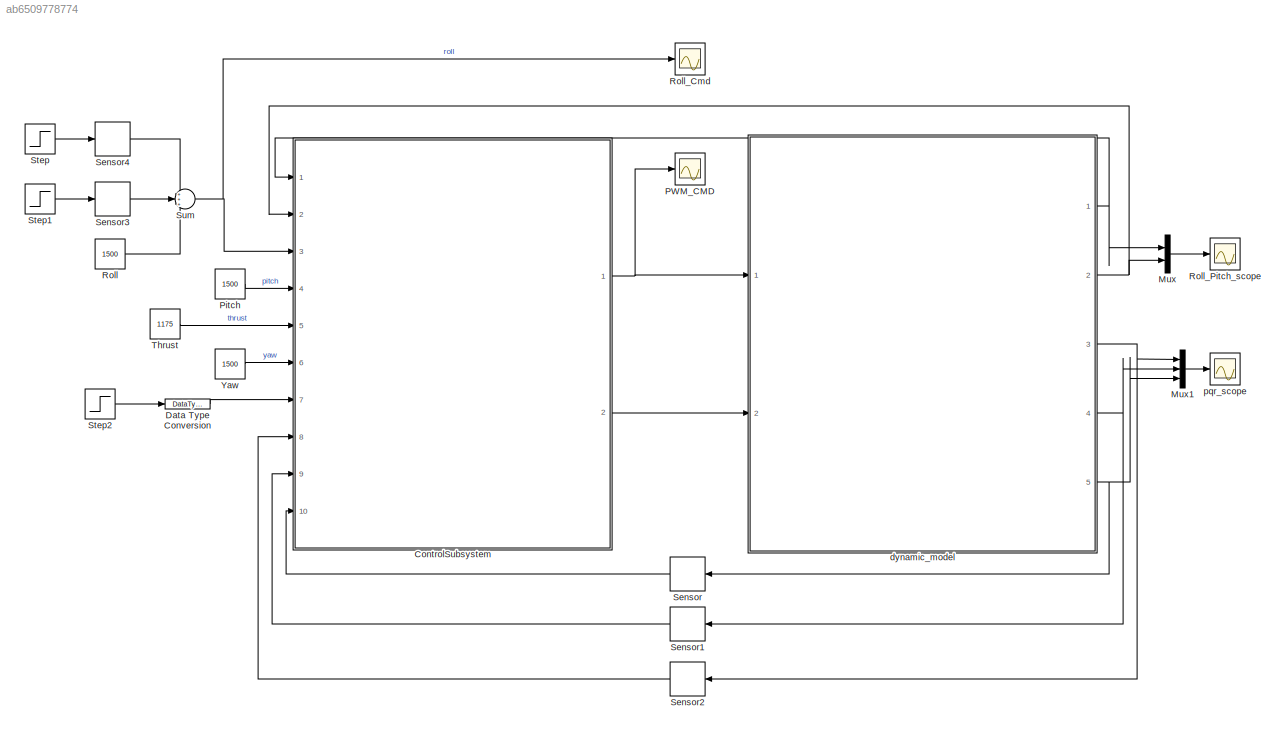
MODEL slx_ab6509778774
KIND model
CONFIG AbsTol = auto
CONFIG EnableMultiTasking = on
CONFIG FixedStep = auto
CONFIG MaxStep = auto
CONFIG MinStep = auto
CONFIG RelTol = 1e-3
CONFIG SampleTimeConstraint = Unconstrained
CONFIG Solver = ode3
CONFIG SolverName = ode3
CONFIG StartTime = 0.0
CONFIG StopTime = 20
BLOCK [ModelReference] ControlSubsystem
  ModelNameDialog = px4demo_attitude_control
  ModelReferenceVersion = 1.109
  Ports = [10, 2]
  Variant = off
BLOCK [DataTypeConversion] Data Type Conversion
  OutDataTypeStr = uint16
  RndMeth = Floor
  SaturateOnIntegerOverflow = off
BLOCK [Mux] Mux
  DisplayOption = bar
  Inputs = 2
  Ports = [2, 1]
BLOCK [Mux] Mux1
  DisplayOption = bar
  Inputs = 3
  Ports = [3, 1]
BLOCK [Scope] PWM_CMD
  NumInputPorts = 1
  Ports = [1]
  ScopeSpecificationString = Simulink.scopes.TimeScopeBlockCfg('CurrentConfiguration', extmgr.ConfigurationSet(extmgr.Configuration('Core','General UI',true),extmgr.Configuration('Core','Source UI',true),extmgr.Configuration('Sources','WiredSimulink',true,'DataLoggingVariableName','ScopeData7','DataLoggingSaveFormat','Array','DataLoggingDecimation','1','DataLoggingDecimateData',true),extmgr.Configuration('Visuals','Time Domai...<+1685ch>
BLOCK [Constant] Pitch
  OutDataTypeStr = uint16
  Value = 1500
BLOCK [Constant] Roll
  Value = 1500
BLOCK [Scope] Roll_Cmd
  NumInputPorts = 1
  Ports = [1]
  ScopeSpecificationString = Simulink.scopes.TimeScopeBlockCfg('CurrentConfiguration', extmgr.ConfigurationSet(extmgr.Configuration('Core','General UI',true),extmgr.Configuration('Core','Source UI',true),extmgr.Configuration('Sources','WiredSimulink',true,'DataLoggingVariableName','ScopeData10','DataLoggingLimitDataPoints',true,'DataLoggingSaveFormat','Array','DataLoggingDecimation','1','DataLoggingDecimateData',true),extmgr....<+1717ch>
BLOCK [Scope] Roll_Pitch_scope
  NumInputPorts = 1
  Ports = [1]
  ScopeSpecificationString = Simulink.scopes.TimeScopeBlockCfg('CurrentConfiguration', extmgr.ConfigurationSet(extmgr.Configuration('Core','General UI',true),extmgr.Configuration('Core','Source UI',true),extmgr.Configuration('Sources','WiredSimulink',true,'DataLoggingVariableName','ScopeData6','DataLoggingLimitDataPoints',true,'DataLoggingSaveFormat','Array','DataLoggingDecimation','1','DataLoggingDecimateData',true),extmgr.C...<+1723ch>
BLOCK [Delay] Sensor
  DelayLength = 1
  InputPortMap = u0
  Ports = [1, 1]
BLOCK [Delay] Sensor1
  DelayLength = 1
  InputPortMap = u0
  Ports = [1, 1]
BLOCK [Delay] Sensor2
  DelayLength = 1
  InputPortMap = u0
  Ports = [1, 1]
BLOCK [Delay] Sensor3
  DelayLength = 1
  InputPortMap = u0
  Ports = [1, 1]
BLOCK [Delay] Sensor4
  DelayLength = 1
  InputPortMap = u0
  Ports = [1, 1]
BLOCK [Step] Step
  After = 100
  SampleTime = 0
  Time = 10
BLOCK [Step] Step1
  After = -100
  SampleTime = 0
  Time = 16
BLOCK [Step] Step2
  After = 1501
  Before = 1499
  SampleTime = 1/250
  Time = 5
BLOCK [Sum] Sum
  IconShape = round
  InputSameDT = off
  Inputs = +++
  OutDataTypeStr = uint16
  Ports = [3, 1]
  SaturateOnIntegerOverflow = off
BLOCK [Constant] Thrust
  OutDataTypeStr = uint16
  Value = 1175
BLOCK [Constant] Yaw
  OutDataTypeStr = uint16
  Value = 1500
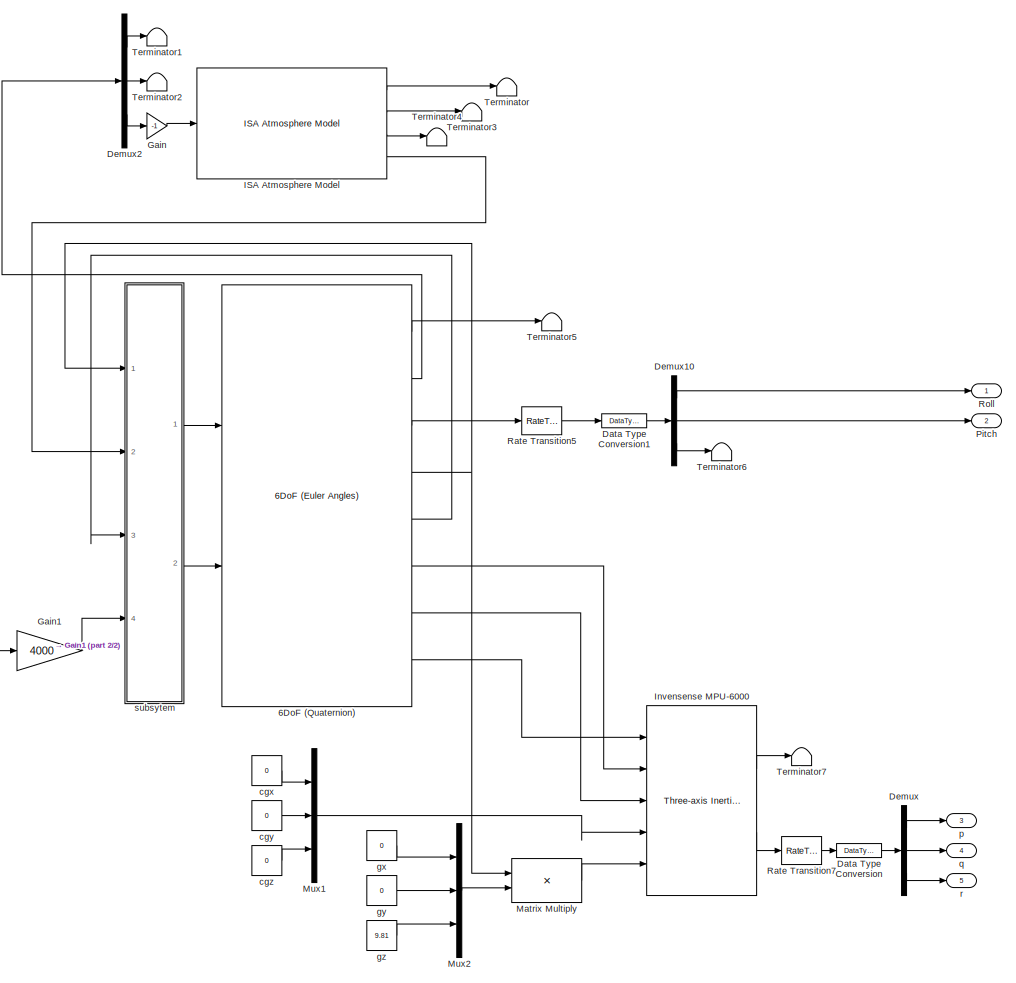
[diagram: dynamic_model - part 1/2, center side, full height]
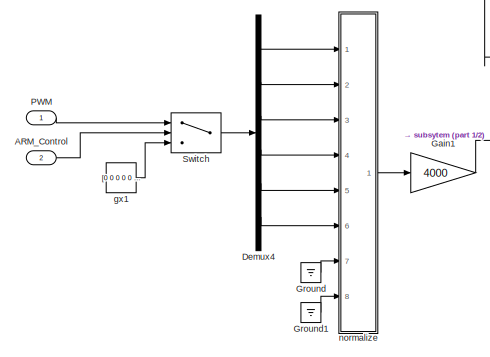
[diagram: dynamic_model - part 2/2, bottom left region]
BLOCK [SubSystem] dynamic_model
  Ports = [2, 5]
  RequestExecContextInheritance = off
  Variant = off
BLOCK [Reference] dynamic_model/6DoF (Quaternion)  REF=aerolibobsolete/6DoF (Euler Angles)
  Ports = [2, 8]
  SourceBlock = aerolibobsolete/6DoF (Euler Angles)
  SourceProductBaseCode = AE
  SourceProductName = Aerospace Blockset
  SourceType = 6DoF EoM (Body Axis)
BLOCK [Inport] dynamic_model/ARM_Control
  IconDisplay = Port number
  Port = 2
BLOCK [DataTypeConversion] dynamic_model/Data Type Conversion
  OutDataTypeStr = single
  RndMeth = Floor
  SaturateOnIntegerOverflow = off
BLOCK [DataTypeConversion] dynamic_model/Data Type Conversion1
  OutDataTypeStr = single
  RndMeth = Floor
  SaturateOnIntegerOverflow = off
BLOCK [Demux] dynamic_model/Demux
  DisplayOption = bar
  Outputs = 3
  Ports = [1, 3]
BLOCK [Demux] dynamic_model/Demux10
  DisplayOption = bar
  Outputs = 3
  Ports = [1, 3]
BLOCK [Demux] dynamic_model/Demux2
  DisplayOption = bar
  Outputs = 3
  Ports = [1, 3]
BLOCK [Demux] dynamic_model/Demux4
  DisplayOption = bar
  Outputs = 6
  Ports = [1, 6]
BLOCK [Gain] dynamic_model/Gain
  Gain = -1
  OutDataTypeStr = Inherit: Inherit via internal rule
  ParamDataTypeStr = Inherit: Inherit via internal rule
  SaturateOnIntegerOverflow = off
BLOCK [Gain] dynamic_model/Gain1
  Gain = 4000
  OutDataTypeStr = Inherit: Inherit via internal rule
  ParamDataTypeStr = Inherit: Inherit via internal rule
  SaturateOnIntegerOverflow = off
BLOCK [Ground] dynamic_model/Ground
BLOCK [Ground] dynamic_model/Ground1
BLOCK [Reference] dynamic_model/ISA Atmosphere Model  REF=aerolibatmos2/ISA Atmosphere Model
  Ports = [1, 4]
  SourceBlock = aerolibatmos2/ISA Atmosphere Model
  SourceProductBaseCode = AE
  SourceProductName = Aerospace Blockset
  SourceType = International Standard Atmosphere Model
BLOCK [Reference] dynamic_model/Invensense MPU-6000  REF=aerolibnav/Three-axis Inertial
Measurement Unit
  Ports = [5, 2]
  SourceBlock = aerolibnav/Three-axis Inertial\nMeasurement Unit
  SourceProductBaseCode = AE
  SourceProductName = Aerospace Blockset
  SourceType = Three-axis Inertial Measurement Unit
BLOCK [Product] dynamic_model/Matrix Multiply
  InputSameDT = off
  Multiplication = Matrix(*)
  OutDataTypeStr = Inherit: Inherit via internal rule
  Ports = [2, 1]
  RndMeth = Floor
  SaturateOnIntegerOverflow = off
BLOCK [Mux] dynamic_model/Mux1
  DisplayOption = bar
  Inputs = 3
  Ports = [3, 1]
BLOCK [Mux] dynamic_model/Mux2
  DisplayOption = bar
  Inputs = 3
  Ports = [3, 1]
BLOCK [Inport] dynamic_model/PWM
  IconDisplay = Port number
BLOCK [Outport] dynamic_model/Pitch
  IconDisplay = Port number
  Port = 2
BLOCK [RateTransition] dynamic_model/Rate Transition5
  OutPortSampleTime = 0.004
BLOCK [RateTransition] dynamic_model/Rate Transition7
  OutPortSampleTime = 0.004
BLOCK [Outport] dynamic_model/Roll
  IconDisplay = Port number
BLOCK [Switch] dynamic_model/Switch
  Criteria = u2 > Threshold
  InputSameDT = off
  SaturateOnIntegerOverflow = off
BLOCK [Terminator] dynamic_model/Terminator
BLOCK [Terminator] dynamic_model/Terminator1
BLOCK [Terminator] dynamic_model/Terminator2
BLOCK [Terminator] dynamic_model/Terminator3
BLOCK [Terminator] dynamic_model/Terminator4
BLOCK [Terminator] dynamic_model/Terminator5
BLOCK [Terminator] dynamic_model/Terminator6
BLOCK [Terminator] dynamic_model/Terminator7
BLOCK [Constant] dynamic_model/cgx
  Value = 0
BLOCK [Constant] dynamic_model/cgy
  Value = 0
BLOCK [Constant] dynamic_model/cgz
  Value = 0
BLOCK [Constant] dynamic_model/gx
  Value = 0
BLOCK [Constant] dynamic_model/gx1
  OutDataTypeStr = uint16
  Value = [0 0 0 0 0 0]
BLOCK [Constant] dynamic_model/gy
  Value = 0
BLOCK [Constant] dynamic_model/gz
  Value = 9.81
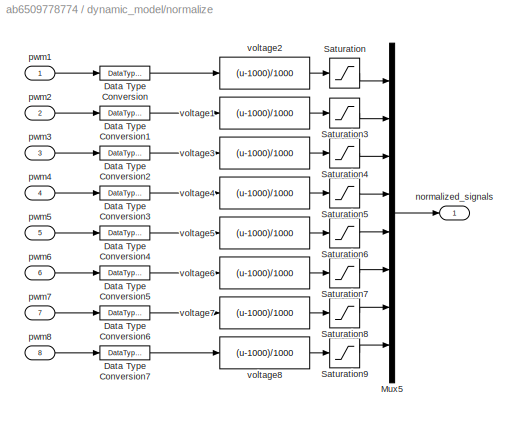
BLOCK [SubSystem] dynamic_model/normalize
  Ports = [8, 1]
  RequestExecContextInheritance = off
  Variant = off
BLOCK [DataTypeConversion] dynamic_model/normalize/Data Type Conversion
  OutDataTypeStr = double
  RndMeth = Floor
  SaturateOnIntegerOverflow = off
BLOCK [DataTypeConversion] dynamic_model/normalize/Data Type Conversion1
  OutDataTypeStr = double
  RndMeth = Floor
  SaturateOnIntegerOverflow = off
BLOCK [DataTypeConversion] dynamic_model/normalize/Data Type Conversion2
  OutDataTypeStr = double
  RndMeth = Floor
  SaturateOnIntegerOverflow = off
BLOCK [DataTypeConversion] dynamic_model/normalize/Data Type Conversion3
  OutDataTypeStr = double
  RndMeth = Floor
  SaturateOnIntegerOverflow = off
BLOCK [DataTypeConversion] dynamic_model/normalize/Data Type Conversion4
  OutDataTypeStr = double
  RndMeth = Floor
  SaturateOnIntegerOverflow = off
BLOCK [DataTypeConversion] dynamic_model/normalize/Data Type Conversion5
  OutDataTypeStr = double
  RndMeth = Floor
  SaturateOnIntegerOverflow = off
BLOCK [DataTypeConversion] dynamic_model/normalize/Data Type Conversion6
  OutDataTypeStr = double
  RndMeth = Floor
  SaturateOnIntegerOverflow = off
BLOCK [DataTypeConversion] dynamic_model/normalize/Data Type Conversion7
  OutDataTypeStr = double
  RndMeth = Floor
  SaturateOnIntegerOverflow = off
BLOCK [Mux] dynamic_model/normalize/Mux5
  DisplayOption = bar
  Inputs = 8
  Ports = [8, 1]
BLOCK [Saturate] dynamic_model/normalize/Saturation
  InputPortMap = u0
  LowerLimit = 0
  Ports = [1, 1]
  UpperLimit = 1
BLOCK [Saturate] dynamic_model/normalize/Saturation3
  InputPortMap = u0
  LowerLimit = 0
  Ports = [1, 1]
  UpperLimit = 1
BLOCK [Saturate] dynamic_model/normalize/Saturation4
  InputPortMap = u0
  LowerLimit = 0
  Ports = [1, 1]
  UpperLimit = 1
BLOCK [Saturate] dynamic_model/normalize/Saturation5
  InputPortMap = u0
  LowerLimit = 0
  Ports = [1, 1]
  UpperLimit = 1
BLOCK [Saturate] dynamic_model/normalize/Saturation6
  InputPortMap = u0
  LowerLimit = 0
  Ports = [1, 1]
  UpperLimit = 1
BLOCK [Saturate] dynamic_model/normalize/Saturation7
  InputPortMap = u0
  LowerLimit = 0
  Ports = [1, 1]
  UpperLimit = 1
BLOCK [Saturate] dynamic_model/normalize/Saturation8
  InputPortMap = u0
  LowerLimit = 0
  Ports = [1, 1]
  UpperLimit = 1
BLOCK [Saturate] dynamic_model/normalize/Saturation9
  InputPortMap = u0
  LowerLimit = 0
  Ports = [1, 1]
  UpperLimit = 1
BLOCK [Outport] dynamic_model/normalize/normalized_signals
  IconDisplay = Port number
BLOCK [Inport] dynamic_model/normalize/pwm1
  IconDisplay = Port number
BLOCK [Inport] dynamic_model/normalize/pwm2
  IconDisplay = Port number
  Port = 2
BLOCK [Inport] dynamic_model/normalize/pwm3
  IconDisplay = Port number
  Port = 3
BLOCK [Inport] dynamic_model/normalize/pwm4
  IconDisplay = Port number
  Port = 4
BLOCK [Inport] dynamic_model/normalize/pwm5
  IconDisplay = Port number
  Port = 5
BLOCK [Inport] dynamic_model/normalize/pwm6
  IconDisplay = Port number
  Port = 6
BLOCK [Inport] dynamic_model/normalize/pwm7
  IconDisplay = Port number
  Port = 7
BLOCK [Inport] dynamic_model/normalize/pwm8
  IconDisplay = Port number
  Port = 8
BLOCK [Fcn] dynamic_model/normalize/voltage1
  Expr = (u-1000)/1000
BLOCK [Fcn] dynamic_model/normalize/voltage2
  Expr = (u-1000)/1000
BLOCK [Fcn] dynamic_model/normalize/voltage3
  Expr = (u-1000)/1000
BLOCK [Fcn] dynamic_model/normalize/voltage4
  Expr = (u-1000)/1000
BLOCK [Fcn] dynamic_model/normalize/voltage5
  Expr = (u-1000)/1000
BLOCK [Fcn] dynamic_model/normalize/voltage6
  Expr = (u-1000)/1000
BLOCK [Fcn] dynamic_model/normalize/voltage7
  Expr = (u-1000)/1000
BLOCK [Fcn] dynamic_model/normalize/voltage8
  Expr = (u-1000)/1000
BLOCK [Outport] dynamic_model/p
  IconDisplay = Port number
  Port = 3
BLOCK [Outport] dynamic_model/q
  IconDisplay = Port number
  Port = 4
BLOCK [Outport] dynamic_model/r
  IconDisplay = Port number
  Port = 5
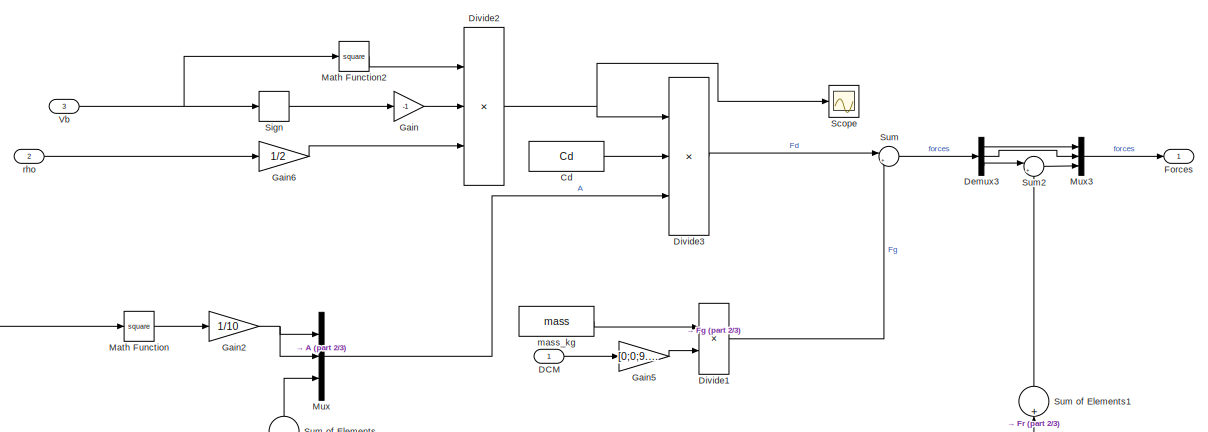
[diagram: dynamic_model/subsytem - part 1/3, top right region]
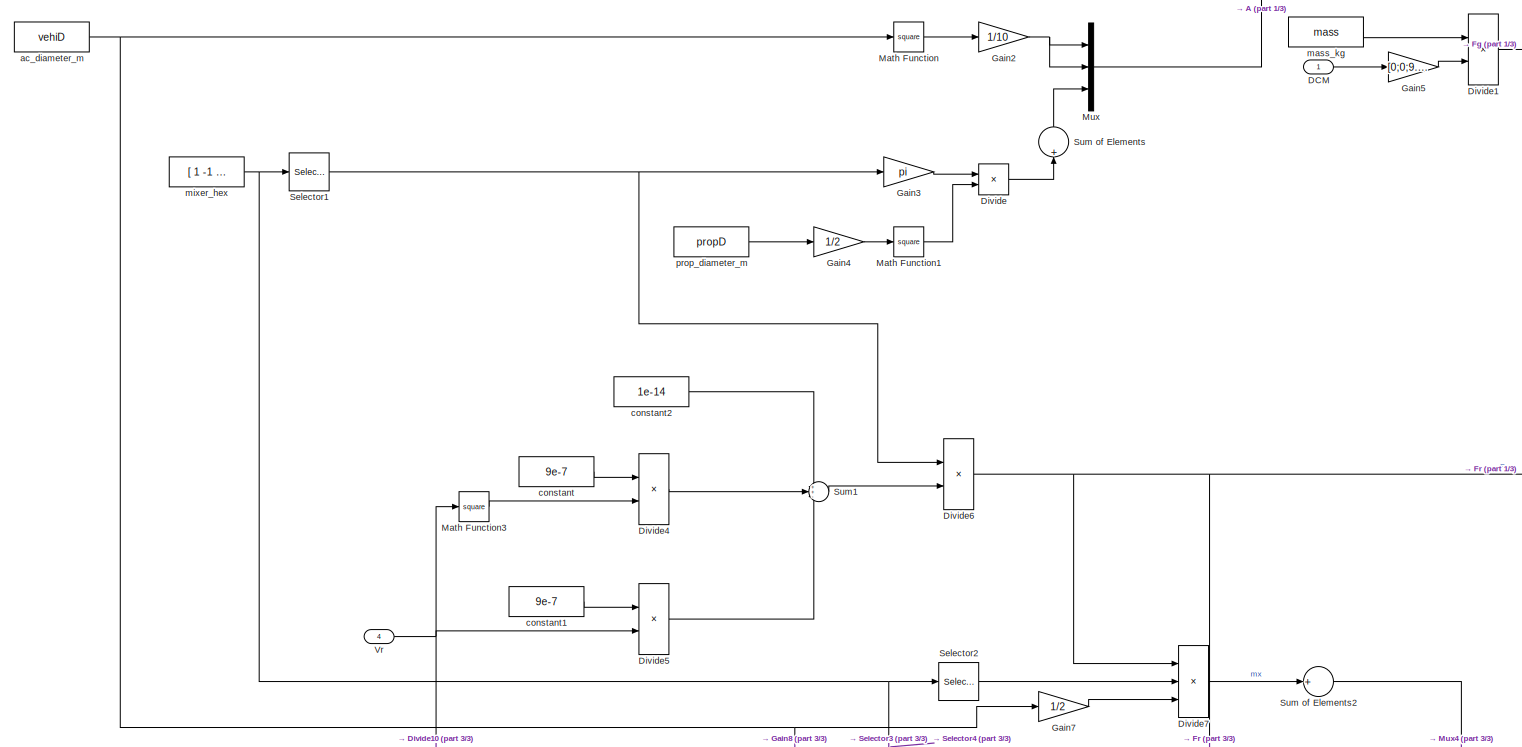
[diagram: dynamic_model/subsytem - part 2/3, full width, middle band]
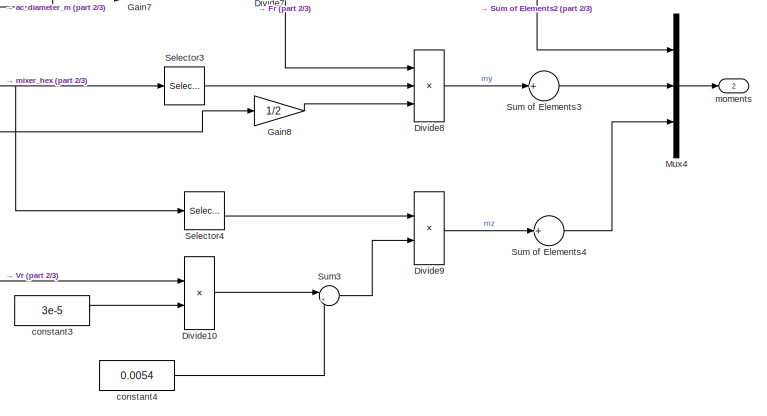
[diagram: dynamic_model/subsytem - part 3/3, bottom center region]
BLOCK [SubSystem] dynamic_model/subsytem
  Ports = [4, 2]
  RequestExecContextInheritance = off
  Variant = off
BLOCK [Constant] dynamic_model/subsytem/Cd
  Value = Cd
BLOCK [Inport] dynamic_model/subsytem/DCM
  IconDisplay = Port number
BLOCK [Demux] dynamic_model/subsytem/Demux3
  DisplayOption = bar
  Outputs = 3
  Ports = [1, 3]
BLOCK [Product] dynamic_model/subsytem/Divide
  InputSameDT = off
  Inputs = **
  OutDataTypeStr = Inherit: Inherit via internal rule
  Ports = [2, 1]
  RndMeth = Floor
  SaturateOnIntegerOverflow = off
BLOCK [Product] dynamic_model/subsytem/Divide1
  InputSameDT = off
  Inputs = **
  OutDataTypeStr = Inherit: Inherit via internal rule
  Ports = [2, 1]
  RndMeth = Floor
  SaturateOnIntegerOverflow = off
BLOCK [Product] dynamic_model/subsytem/Divide10
  InputSameDT = off
  Inputs = **
  OutDataTypeStr = Inherit: Inherit via internal rule
  Ports = [2, 1]
  RndMeth = Floor
  SaturateOnIntegerOverflow = off
BLOCK [Product] dynamic_model/subsytem/Divide2
  InputSameDT = off
  Inputs = ***
  OutDataTypeStr = Inherit: Inherit via internal rule
  Ports = [3, 1]
  RndMeth = Floor
  SaturateOnIntegerOverflow = off
BLOCK [Product] dynamic_model/subsytem/Divide3
  InputSameDT = off
  Inputs = ***
  OutDataTypeStr = Inherit: Inherit via internal rule
  Ports = [3, 1]
  RndMeth = Floor
  SaturateOnIntegerOverflow = off
BLOCK [Product] dynamic_model/subsytem/Divide4
  InputSameDT = off
  Inputs = **
  OutDataTypeStr = Inherit: Inherit via internal rule
  Ports = [2, 1]
  RndMeth = Floor
  SaturateOnIntegerOverflow = off
BLOCK [Product] dynamic_model/subsytem/Divide5
  InputSameDT = off
  Inputs = **
  OutDataTypeStr = Inherit: Inherit via internal rule
  Ports = [2, 1]
  RndMeth = Floor
  SaturateOnIntegerOverflow = off
BLOCK [Product] dynamic_model/subsytem/Divide6
  InputSameDT = off
  Inputs = **
  OutDataTypeStr = Inherit: Inherit via internal rule
  Ports = [2, 1]
  RndMeth = Floor
  SaturateOnIntegerOverflow = off
BLOCK [Product] dynamic_model/subsytem/Divide7
  InputSameDT = off
  Inputs = ***
  OutDataTypeStr = Inherit: Inherit via internal rule
  Ports = [3, 1]
  RndMeth = Floor
  SaturateOnIntegerOverflow = off
BLOCK [Product] dynamic_model/subsytem/Divide8
  InputSameDT = off
  Inputs = ***
  OutDataTypeStr = Inherit: Inherit via internal rule
  Ports = [3, 1]
  RndMeth = Floor
  SaturateOnIntegerOverflow = off
BLOCK [Product] dynamic_model/subsytem/Divide9
  InputSameDT = off
  Inputs = **
  OutDataTypeStr = Inherit: Inherit via internal rule
  Ports = [2, 1]
  RndMeth = Floor
  SaturateOnIntegerOverflow = off
BLOCK [Outport] dynamic_model/subsytem/Forces
  IconDisplay = Port number
BLOCK [Gain] dynamic_model/subsytem/Gain
  Gain = -1
  OutDataTypeStr = Inherit: Inherit via internal rule
  ParamDataTypeStr = Inherit: Inherit via internal rule
  SaturateOnIntegerOverflow = off
BLOCK [Gain] dynamic_model/subsytem/Gain2
  Gain = 1/10
  OutDataTypeStr = Inherit: Inherit via internal rule
  ParamDataTypeStr = Inherit: Inherit via internal rule
  SaturateOnIntegerOverflow = off
BLOCK [Gain] dynamic_model/subsytem/Gain3
  Gain = pi
  OutDataTypeStr = Inherit: Inherit via internal rule
  ParamDataTypeStr = Inherit: Inherit via internal rule
  SaturateOnIntegerOverflow = off
BLOCK [Gain] dynamic_model/subsytem/Gain4
  Gain = 1/2
  OutDataTypeStr = Inherit: Inherit via internal rule
  ParamDataTypeStr = Inherit: Inherit via internal rule
  SaturateOnIntegerOverflow = off
BLOCK [Gain] dynamic_model/subsytem/Gain5
  Gain = [0;0;9.81]
  Multiplication = Matrix(u*K)
  OutDataTypeStr = Inherit: Inherit via internal rule
  ParamDataTypeStr = Inherit: Inherit via internal rule
  SaturateOnIntegerOverflow = off
BLOCK [Gain] dynamic_model/subsytem/Gain6
  Gain = 1/2
  OutDataTypeStr = Inherit: Inherit via internal rule
  ParamDataTypeStr = Inherit: Inherit via internal rule
  SaturateOnIntegerOverflow = off
BLOCK [Gain] dynamic_model/subsytem/Gain7
  Gain = 1/2
  OutDataTypeStr = Inherit: Inherit via internal rule
  ParamDataTypeStr = Inherit: Inherit via internal rule
  SaturateOnIntegerOverflow = off
BLOCK [Gain] dynamic_model/subsytem/Gain8
  Gain = 1/2
  OutDataTypeStr = Inherit: Inherit via internal rule
  ParamDataTypeStr = Inherit: Inherit via internal rule
  SaturateOnIntegerOverflow = off
BLOCK [Math] dynamic_model/subsytem/Math Function
  Operator = square
  Ports = [1, 1]
BLOCK [Math] dynamic_model/subsytem/Math Function1
  Operator = square
  Ports = [1, 1]
BLOCK [Math] dynamic_model/subsytem/Math Function2
  Operator = square
  Ports = [1, 1]
BLOCK [Math] dynamic_model/subsytem/Math Function3
  Operator = square
  Ports = [1, 1]
BLOCK [Mux] dynamic_model/subsytem/Mux
  DisplayOption = bar
  Inputs = 3
  Ports = [3, 1]
BLOCK [Mux] dynamic_model/subsytem/Mux3
  DisplayOption = bar
  Inputs = 3
  Ports = [3, 1]
BLOCK [Mux] dynamic_model/subsytem/Mux4
  DisplayOption = bar
  Inputs = 3
  Ports = [3, 1]
BLOCK [Scope] dynamic_model/subsytem/Scope
  Commented = on
  NumInputPorts = 1
  Ports = [1]
  ScopeSpecificationString = C++SS(StrPVP('Location','[1130, 441, 1497, 705]'),StrPVP('Open','off'),MxPVP('AxesTitles',53,'struct(''axes1'',''%<SignalLabel>'')'),MxPVP('ScopeGraphics',56,'struct(''FigureColor'',''[0.5 0.5 0.5]'',''AxesColor'',''[0 0 0]'',''AxesTickColor'',''[1 1 1]'',''LineColors'',''[1 1 0;1 0 1;0 1 1;1 0 0;0 1 0;0 0 1]'',''LineStyles'',''-|-|-|-|-|-'',''LineWidths'',''[0.5 0.5 0.5 0.5 0.5 0.5]'',''MarkerSty...<+269ch>
BLOCK [Selector] dynamic_model/subsytem/Selector1
  IndexOptions = Index vector (dialog),Index vector (dialog)
  Indices = [1:8],1
  InputPortWidth = [8 4]
  NumberOfDimensions = 2
  OutputSizes = 1,1
  Ports = [1, 1]
BLOCK [Selector] dynamic_model/subsytem/Selector2
  IndexOptions = Index vector (dialog),Index vector (dialog)
  Indices = [1:8],2
  InputPortWidth = [8 4]
  NumberOfDimensions = 2
  OutputSizes = 1,1
  Ports = [1, 1]
BLOCK [Selector] dynamic_model/subsytem/Selector3
  IndexOptions = Index vector (dialog),Index vector (dialog)
  Indices = [1:8],3
  InputPortWidth = [8 4]
  NumberOfDimensions = 2
  OutputSizes = 1,1
  Ports = [1, 1]
BLOCK [Selector] dynamic_model/subsytem/Selector4
  IndexOptions = Index vector (dialog),Index vector (dialog)
  Indices = [1:8],4
  InputPortWidth = [8 4]
  NumberOfDimensions = 2
  OutputSizes = 1,1
  Ports = [1, 1]
BLOCK [Signum] dynamic_model/subsytem/Sign
BLOCK [Sum] dynamic_model/subsytem/Sum
  IconShape = round
  InputSameDT = off
  Inputs = |++
  OutDataTypeStr = Inherit: Inherit via internal rule
  Ports = [2, 1]
  SaturateOnIntegerOverflow = off
BLOCK [Sum] dynamic_model/subsytem/Sum of Elements
  InputSameDT = off
  Inputs = +
  OutDataTypeStr = Inherit: Inherit via internal rule
  Ports = [1, 1]
  SaturateOnIntegerOverflow = off
BLOCK [Sum] dynamic_model/subsytem/Sum of Elements1
  InputSameDT = off
  Inputs = +
  OutDataTypeStr = Inherit: Inherit via internal rule
  Ports = [1, 1]
  SaturateOnIntegerOverflow = off
BLOCK [Sum] dynamic_model/subsytem/Sum of Elements2
  InputSameDT = off
  Inputs = +
  OutDataTypeStr = Inherit: Inherit via internal rule
  Ports = [1, 1]
  SaturateOnIntegerOverflow = off
BLOCK [Sum] dynamic_model/subsytem/Sum of Elements3
  InputSameDT = off
  Inputs = +
  OutDataTypeStr = Inherit: Inherit via internal rule
  Ports = [1, 1]
  SaturateOnIntegerOverflow = off
BLOCK [Sum] dynamic_model/subsytem/Sum of Elements4
  InputSameDT = off
  Inputs = +
  OutDataTypeStr = Inherit: Inherit via internal rule
  Ports = [1, 1]
  SaturateOnIntegerOverflow = off
BLOCK [Sum] dynamic_model/subsytem/Sum1
  IconShape = round
  InputSameDT = off
  Inputs = ++-
  OutDataTypeStr = Inherit: Inherit via internal rule
  Ports = [3, 1]
  SaturateOnIntegerOverflow = off
BLOCK [Sum] dynamic_model/subsytem/Sum2
  IconShape = round
  InputSameDT = off
  Inputs = |+-
  OutDataTypeStr = Inherit: Inherit via internal rule
  Ports = [2, 1]
  SaturateOnIntegerOverflow = off
BLOCK [Sum] dynamic_model/subsytem/Sum3
  IconShape = round
  InputSameDT = off
  Inputs = |+-
  OutDataTypeStr = Inherit: Inherit via internal rule
  Ports = [2, 1]
  SaturateOnIntegerOverflow = off
BLOCK [Inport] dynamic_model/subsytem/Vb
  IconDisplay = Port number
  Port = 3
BLOCK [Inport] dynamic_model/subsytem/Vr
  IconDisplay = Port number
  Port = 4
BLOCK [Constant] dynamic_model/subsytem/ac_diameter_m
  Value = vehiD
BLOCK [Constant] dynamic_model/subsytem/constant
  Value = 9e-7
BLOCK [Constant] dynamic_model/subsytem/constant1
  Value = 9e-7
BLOCK [Constant] dynamic_model/subsytem/constant2
  Value = 1e-14
BLOCK [Constant] dynamic_model/subsytem/constant3
  Value = 3e-5
BLOCK [Constant] dynamic_model/subsytem/constant4
  Value = 0.0054
BLOCK [Constant] dynamic_model/subsytem/mass_kg
  Value = mass
BLOCK [Constant] dynamic_model/subsytem/mixer_hex
  Value = [   1   -1   0  -1   ;\n            1  1   0   1   ;\n            1  1   1  -1   ;\n            1  -1  -1   1   ;\n            1   -1  1  1   ;\n            1   1   -1   -1   ;\n            0   0   0   0   ;\n            0   0   0   0   ];
BLOCK [Outport] dynamic_model/subsytem/moments
  IconDisplay = Port number
  Port = 2
BLOCK [Constant] dynamic_model/subsytem/prop_diameter_m
  Value = propD
BLOCK [Inport] dynamic_model/subsytem/rho
  IconDisplay = Port number
  Port = 2
BLOCK [Scope] pqr_scope
  NumInputPorts = 1
  Ports = [1]
  ScopeSpecificationString = Simulink.scopes.TimeScopeBlockCfg('CurrentConfiguration', extmgr.ConfigurationSet(extmgr.Configuration('Core','General UI',true),extmgr.Configuration('Core','Source UI',true),extmgr.Configuration('Sources','WiredSimulink',true,'DataLoggingLimitDataPoints',true,'DataLoggingSaveFormat','Array','DataLoggingDecimation','1','DataLoggingDecimateData',true),extmgr.Configuration('Visuals','Time Domain',tr...<+1685ch>
NET ControlSubsystem:1 -> PWM_CMD:1, dynamic_model:1
LINE ControlSubsystem:2 -> dynamic_model:2
LINE Data Type Conversion:1 -> ControlSubsystem:7
LINE Mux1:1 -> pqr_scope:1
LINE Mux:1 -> Roll_Pitch_scope:1
LINE Pitch:1 -> ControlSubsystem:4
LINE Roll:1 -> Sum:3
LINE Sensor1:1 -> ControlSubsystem:9
LINE Sensor2:1 -> ControlSubsystem:8
LINE Sensor3:1 -> Sum:2
LINE Sensor4:1 -> Sum:1
LINE Sensor:1 -> ControlSubsystem:10
LINE Step1:1 -> Sensor3:1
LINE Step2:1 -> Data Type Conversion:1
LINE Step:1 -> Sensor4:1
NET Sum:1 -> ControlSubsystem:3, Roll_Cmd:1
LINE Thrust:1 -> ControlSubsystem:5
LINE Yaw:1 -> ControlSubsystem:6
LINE dynamic_model/6DoF (Quaternion):1 -> dynamic_model/Terminator5:1
LINE dynamic_model/6DoF (Quaternion):2 -> dynamic_model/Demux2:1
LINE dynamic_model/6DoF (Quaternion):3 -> dynamic_model/Rate Transition5:1
NET dynamic_model/6DoF (Quaternion):4 -> dynamic_model/Matrix Multiply:1, dynamic_model/subsytem:1
LINE dynamic_model/6DoF (Quaternion):5 -> dynamic_model/subsytem:3
LINE dynamic_model/6DoF (Quaternion):6 -> dynamic_model/Invensense MPU-6000:2
LINE dynamic_model/6DoF (Quaternion):7 -> dynamic_model/Invensense MPU-6000:3
LINE dynamic_model/6DoF (Quaternion):8 -> dynamic_model/Invensense MPU-6000:1
LINE dynamic_model/ARM_Control:1 -> dynamic_model/Switch:2
LINE dynamic_model/Data Type Conversion1:1 -> dynamic_model/Demux10:1
LINE dynamic_model/Data Type Conversion:1 -> dynamic_model/Demux:1
LINE dynamic_model/Demux10:1 -> dynamic_model/Roll:1
LINE dynamic_model/Demux10:2 -> dynamic_model/Pitch:1
LINE dynamic_model/Demux10:3 -> dynamic_model/Terminator6:1
LINE dynamic_model/Demux2:1 -> dynamic_model/Terminator1:1
LINE dynamic_model/Demux2:2 -> dynamic_model/Terminator2:1
LINE dynamic_model/Demux2:3 -> dynamic_model/Gain:1
LINE dynamic_model/Demux4:1 -> dynamic_model/normalize:1
LINE dynamic_model/Demux4:2 -> dynamic_model/normalize:2
LINE dynamic_model/Demux4:3 -> dynamic_model/normalize:3
LINE dynamic_model/Demux4:4 -> dynamic_model/normalize:4
LINE dynamic_model/Demux4:5 -> dynamic_model/normalize:5
LINE dynamic_model/Demux4:6 -> dynamic_model/normalize:6
LINE dynamic_model/Demux:1 -> dynamic_model/p:1
LINE dynamic_model/Demux:2 -> dynamic_model/q:1
LINE dynamic_model/Demux:3 -> dynamic_model/r:1
LINE dynamic_model/Gain1:1 -> dynamic_model/subsytem:4
LINE dynamic_model/Gain:1 -> dynamic_model/ISA Atmosphere Model:1
LINE dynamic_model/Ground1:1 -> dynamic_model/normalize:8
LINE dynamic_model/Ground:1 -> dynamic_model/normalize:7
LINE dynamic_model/ISA Atmosphere Model:1 -> dynamic_model/Terminator:1
LINE dynamic_model/ISA Atmosphere Model:2 -> dynamic_model/Terminator3:1
LINE dynamic_model/ISA Atmosphere Model:3 -> dynamic_model/Terminator4:1
LINE dynamic_model/ISA Atmosphere Model:4 -> dynamic_model/subsytem:2
LINE dynamic_model/Invensense MPU-6000:1 -> dynamic_model/Terminator7:1
LINE dynamic_model/Invensense MPU-6000:2 -> dynamic_model/Rate Transition7:1
LINE dynamic_model/Matrix Multiply:1 -> dynamic_model/Invensense MPU-6000:5
LINE dynamic_model/Mux1:1 -> dynamic_model/Invensense MPU-6000:4
LINE dynamic_model/Mux2:1 -> dynamic_model/Matrix Multiply:2
LINE dynamic_model/PWM:1 -> dynamic_model/Switch:1
LINE dynamic_model/Rate Transition5:1 -> dynamic_model/Data Type Conversion1:1
LINE dynamic_model/Rate Transition7:1 -> dynamic_model/Data Type Conversion:1
LINE dynamic_model/Switch:1 -> dynamic_model/Demux4:1
LINE dynamic_model/cgx:1 -> dynamic_model/Mux1:1
LINE dynamic_model/cgy:1 -> dynamic_model/Mux1:2
LINE dynamic_model/cgz:1 -> dynamic_model/Mux1:3
LINE dynamic_model/gx1:1 -> dynamic_model/Switch:3
LINE dynamic_model/gx:1 -> dynamic_model/Mux2:1
LINE dynamic_model/gy:1 -> dynamic_model/Mux2:2
LINE dynamic_model/gz:1 -> dynamic_model/Mux2:3
LINE dynamic_model/normalize/Data Type Conversion1:1 -> dynamic_model/normalize/voltage1:1
LINE dynamic_model/normalize/Data Type Conversion2:1 -> dynamic_model/normalize/voltage3:1
LINE dynamic_model/normalize/Data Type Conversion3:1 -> dynamic_model/normalize/voltage4:1
LINE dynamic_model/normalize/Data Type Conversion4:1 -> dynamic_model/normalize/voltage5:1
LINE dynamic_model/normalize/Data Type Conversion5:1 -> dynamic_model/normalize/voltage6:1
LINE dynamic_model/normalize/Data Type Conversion6:1 -> dynamic_model/normalize/voltage7:1
LINE dynamic_model/normalize/Data Type Conversion7:1 -> dynamic_model/normalize/voltage8:1
LINE dynamic_model/normalize/Data Type Conversion:1 -> dynamic_model/normalize/voltage2:1
LINE dynamic_model/normalize/Mux5:1 -> dynamic_model/normalize/normalized_signals:1
LINE dynamic_model/normalize/Saturation3:1 -> dynamic_model/normalize/Mux5:2
LINE dynamic_model/normalize/Saturation4:1 -> dynamic_model/normalize/Mux5:3
LINE dynamic_model/normalize/Saturation5:1 -> dynamic_model/normalize/Mux5:4
LINE dynamic_model/normalize/Saturation6:1 -> dynamic_model/normalize/Mux5:5
LINE dynamic_model/normalize/Saturation7:1 -> dynamic_model/normalize/Mux5:6
LINE dynamic_model/normalize/Saturation8:1 -> dynamic_model/normalize/Mux5:7
LINE dynamic_model/normalize/Saturation9:1 -> dynamic_model/normalize/Mux5:8
LINE dynamic_model/normalize/Saturation:1 -> dynamic_model/normalize/Mux5:1
LINE dynamic_model/normalize/pwm1:1 -> dynamic_model/normalize/Data Type Conversion:1
LINE dynamic_model/normalize/pwm2:1 -> dynamic_model/normalize/Data Type Conversion1:1
LINE dynamic_model/normalize/pwm3:1 -> dynamic_model/normalize/Data Type Conversion2:1
LINE dynamic_model/normalize/pwm4:1 -> dynamic_model/normalize/Data Type Conversion3:1
LINE dynamic_model/normalize/pwm5:1 -> dynamic_model/normalize/Data Type Conversion4:1
LINE dynamic_model/normalize/pwm6:1 -> dynamic_model/normalize/Data Type Conversion5:1
LINE dynamic_model/normalize/pwm7:1 -> dynamic_model/normalize/Data Type Conversion6:1
LINE dynamic_model/normalize/pwm8:1 -> dynamic_model/normalize/Data Type Conversion7:1
LINE dynamic_model/normalize/voltage1:1 -> dynamic_model/normalize/Saturation3:1
LINE dynamic_model/normalize/voltage2:1 -> dynamic_model/normalize/Saturation:1
LINE dynamic_model/normalize/voltage3:1 -> dynamic_model/normalize/Saturation4:1
LINE dynamic_model/normalize/voltage4:1 -> dynamic_model/normalize/Saturation5:1
LINE dynamic_model/normalize/voltage5:1 -> dynamic_model/normalize/Saturation6:1
LINE dynamic_model/normalize/voltage6:1 -> dynamic_model/normalize/Saturation7:1
LINE dynamic_model/normalize/voltage7:1 -> dynamic_model/normalize/Saturation8:1
LINE dynamic_model/normalize/voltage8:1 -> dynamic_model/normalize/Saturation9:1
LINE dynamic_model/normalize:1 -> dynamic_model/Gain1:1
LINE dynamic_model/subsytem/Cd:1 -> dynamic_model/subsytem/Divide3:2
LINE dynamic_model/subsytem/DCM:1 -> dynamic_model/subsytem/Gain5:1
LINE dynamic_model/subsytem/Demux3:1 -> dynamic_model/subsytem/Mux3:1
LINE dynamic_model/subsytem/Demux3:2 -> dynamic_model/subsytem/Mux3:2
LINE dynamic_model/subsytem/Demux3:3 -> dynamic_model/subsytem/Sum2:1
LINE dynamic_model/subsytem/Divide10:1 -> dynamic_model/subsytem/Sum3:1
LINE dynamic_model/subsytem/Divide1:1 -> dynamic_model/subsytem/Sum:2
NET dynamic_model/subsytem/Divide2:1 -> dynamic_model/subsytem/Divide3:1, dynamic_model/subsytem/Scope:1
LINE dynamic_model/subsytem/Divide3:1 -> dynamic_model/subsytem/Sum:1
LINE dynamic_model/subsytem/Divide4:1 -> dynamic_model/subsytem/Sum1:2
LINE dynamic_model/subsytem/Divide5:1 -> dynamic_model/subsytem/Sum1:3
NET dynamic_model/subsytem/Divide6:1 -> dynamic_model/subsytem/Divide7:1, dynamic_model/subsytem/Divide8:1, dynamic_model/subsytem/Sum of Elements1:1
LINE dynamic_model/subsytem/Divide7:1 -> dynamic_model/subsytem/Sum of Elements2:1
LINE dynamic_model/subsytem/Divide8:1 -> dynamic_model/subsytem/Sum of Elements3:1
LINE dynamic_model/subsytem/Divide9:1 -> dynamic_model/subsytem/Sum of Elements4:1
LINE dynamic_model/subsytem/Divide:1 -> dynamic_model/subsytem/Sum of Elements:1
NET dynamic_model/subsytem/Gain2:1 -> dynamic_model/subsytem/Mux:1, dynamic_model/subsytem/Mux:2
LINE dynamic_model/subsytem/Gain3:1 -> dynamic_model/subsytem/Divide:1
LINE dynamic_model/subsytem/Gain4:1 -> dynamic_model/subsytem/Math Function1:1
LINE dynamic_model/subsytem/Gain5:1 -> dynamic_model/subsytem/Divide1:2
LINE dynamic_model/subsytem/Gain6:1 -> dynamic_model/subsytem/Divide2:3
LINE dynamic_model/subsytem/Gain7:1 -> dynamic_model/subsytem/Divide7:3
LINE dynamic_model/subsytem/Gain8:1 -> dynamic_model/subsytem/Divide8:3
LINE dynamic_model/subsytem/Gain:1 -> dynamic_model/subsytem/Divide2:2
LINE dynamic_model/subsytem/Math Function1:1 -> dynamic_model/subsytem/Divide:2
LINE dynamic_model/subsytem/Math Function2:1 -> dynamic_model/subsytem/Divide2:1
LINE dynamic_model/subsytem/Math Function3:1 -> dynamic_model/subsytem/Divide4:2
LINE dynamic_model/subsytem/Math Function:1 -> dynamic_model/subsytem/Gain2:1
LINE dynamic_model/subsytem/Mux3:1 -> dynamic_model/subsytem/Forces:1
LINE dynamic_model/subsytem/Mux4:1 -> dynamic_model/subsytem/moments:1
LINE dynamic_model/subsytem/Mux:1 -> dynamic_model/subsytem/Divide3:3
NET dynamic_model/subsytem/Selector1:1 -> dynamic_model/subsytem/Divide6:1, dynamic_model/subsytem/Gain3:1
LINE dynamic_model/subsytem/Selector2:1 -> dynamic_model/subsytem/Divide7:2
LINE dynamic_model/subsytem/Selector3:1 -> dynamic_model/subsytem/Divide8:2
LINE dynamic_model/subsytem/Selector4:1 -> dynamic_model/subsytem/Divide9:1
LINE dynamic_model/subsytem/Sign:1 -> dynamic_model/subsytem/Gain:1
LINE dynamic_model/subsytem/Sum of Elements1:1 -> dynamic_model/subsytem/Sum2:2
LINE dynamic_model/subsytem/Sum of Elements2:1 -> dynamic_model/subsytem/Mux4:1
LINE dynamic_model/subsytem/Sum of Elements3:1 -> dynamic_model/subsytem/Mux4:2
LINE dynamic_model/subsytem/Sum of Elements4:1 -> dynamic_model/subsytem/Mux4:3
LINE dynamic_model/subsytem/Sum of Elements:1 -> dynamic_model/subsytem/Mux:3
LINE dynamic_model/subsytem/Sum1:1 -> dynamic_model/subsytem/Divide6:2
LINE dynamic_model/subsytem/Sum2:1 -> dynamic_model/subsytem/Mux3:3
LINE dynamic_model/subsytem/Sum3:1 -> dynamic_model/subsytem/Divide9:2
LINE dynamic_model/subsytem/Sum:1 -> dynamic_model/subsytem/Demux3:1
NET dynamic_model/subsytem/Vb:1 -> dynamic_model/subsytem/Math Function2:1, dynamic_model/subsytem/Sign:1
NET dynamic_model/subsytem/Vr:1 -> dynamic_model/subsytem/Divide10:1, dynamic_model/subsytem/Divide5:2, dynamic_model/subsytem/Math Function3:1
NET dynamic_model/subsytem/ac_diameter_m:1 -> dynamic_model/subsytem/Gain7:1, dynamic_model/subsytem/Gain8:1, dynamic_model/subsytem/Math Function:1
LINE dynamic_model/subsytem/constant1:1 -> dynamic_model/subsytem/Divide5:1
LINE dynamic_model/subsytem/constant2:1 -> dynamic_model/subsytem/Sum1:1
LINE dynamic_model/subsytem/constant3:1 -> dynamic_model/subsytem/Divide10:2
LINE dynamic_model/subsytem/constant4:1 -> dynamic_model/subsytem/Sum3:2
LINE dynamic_model/subsytem/constant:1 -> dynamic_model/subsytem/Divide4:1
LINE dynamic_model/subsytem/mass_kg:1 -> dynamic_model/subsytem/Divide1:1
NET dynamic_model/subsytem/mixer_hex:1 -> dynamic_model/subsytem/Selector1:1, dynamic_model/subsytem/Selector2:1, dynamic_model/subsytem/Selector3:1, dynamic_model/subsytem/Selector4:1
LINE dynamic_model/subsytem/prop_diameter_m:1 -> dynamic_model/subsytem/Gain4:1
LINE dynamic_model/subsytem/rho:1 -> dynamic_model/subsytem/Gain6:1
LINE dynamic_model/subsytem:1 -> dynamic_model/6DoF (Quaternion):1
LINE dynamic_model/subsytem:2 -> dynamic_model/6DoF (Quaternion):2
NET dynamic_model:1 -> ControlSubsystem:1, Mux:1
NET dynamic_model:2 -> ControlSubsystem:2, Mux:2
NET dynamic_model:3 -> Mux1:1, Sensor2:1
NET dynamic_model:4 -> Mux1:2, Sensor1:1
NET dynamic_model:5 -> Mux1:3, Sensor:1
note: NET lines group one-source signal fan-out (src -> all destinations, sorted); 1:1 wires keep LINE
